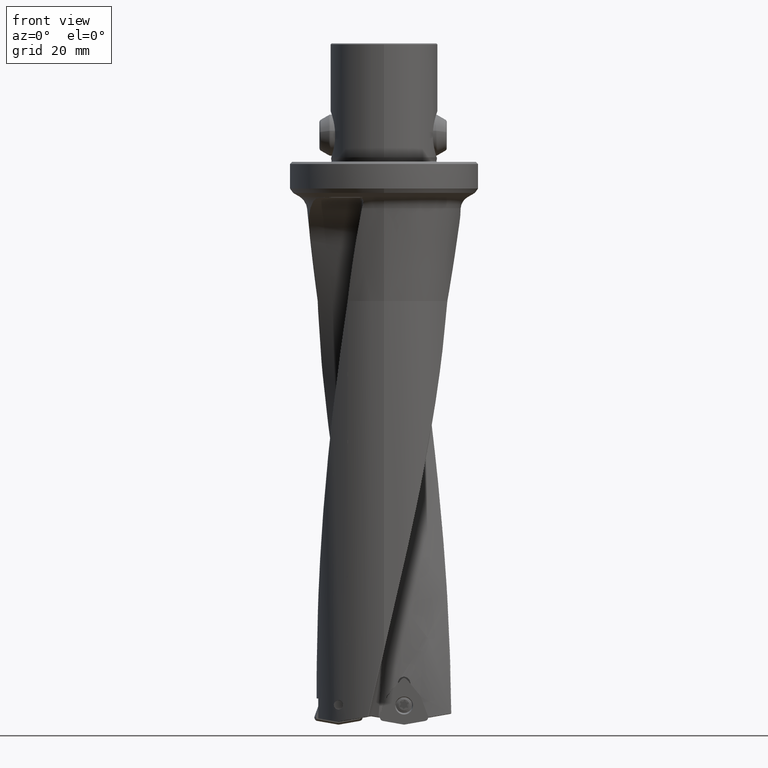
[diagram: clean part render]
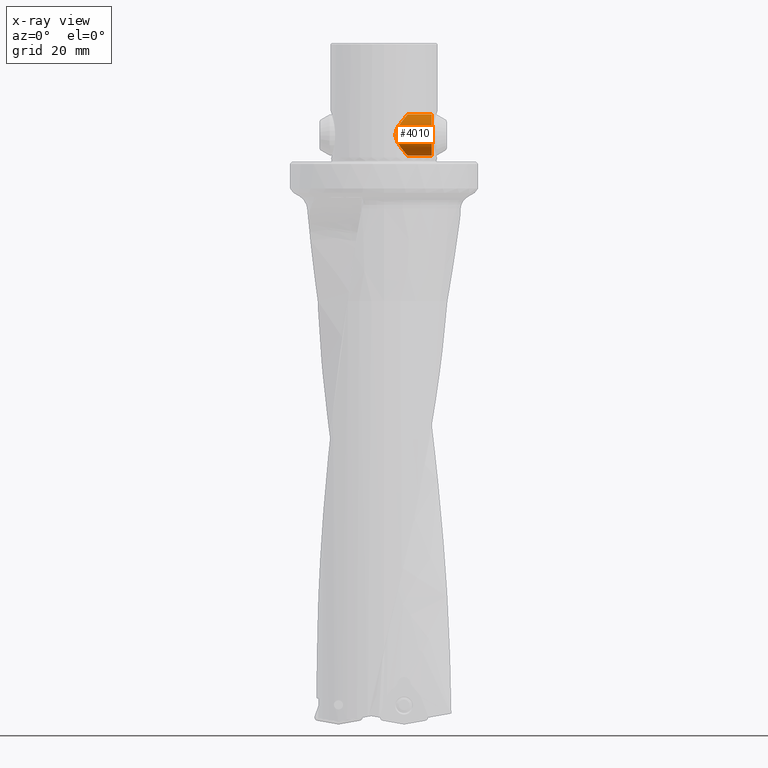
[diagram: x-ray — body ghosted, one internal face saturated and labeled with its STEP entity id]
A machine part, front view, then the same camera in x-ray: the body is ghosted and one INTERNAL B-rep face — a face not visible from any outside direction — is saturated and labeled: STEP entity #4010.
In plain terms, the highlighted cylindrical surface (edge-blend (fillet) strip) has radius 7 mm, axis along (-1, 0, -0).
Its self-contained STEP definition (entity closure, byte-faithful):
#2290=EDGE_CURVE('NONE',#3262,#4446,#6003,.T.);
#2452=EDGE_CURVE('NONE',#3468,#4674,#6177,.T.);
#2458=EDGE_CURVE('NONE',#4446,#4674,#6183,.F.);
#3262=VERTEX_POINT('NONE',#7089);
#3468=VERTEX_POINT('NONE',#7321);
#4010=ADVANCED_FACE('NONE',(#7917),#7918,.F.);
#4446=VERTEX_POINT('NONE',#8397);
#4562=EDGE_CURVE('NONE',#3468,#3262,#8527,.T.);
#4674=VERTEX_POINT('NONE',#8655);
#6003=LINE('',#12267,#12268);
#6177=LINE('',#12723,#12724);
#6183=B_SPLINE_CURVE_WITH_KNOTS('',3,(#12731,#12732,#12733,#12734,#12735,#12736,#12737,#12738,#12739,#12740,#12741,#12742,#12743,#12744,#12745,#12746,#12747,#12748,#12749,#12750,#12751,#12752,#12753,#12754,#12755,#12756,#12757,#12758,#12759,#12760,#12761,#12762,#12763,#12764,#12765,#12766,#12767,#12768,#12769),.UNSPECIFIED.,.F.,.F.,(4,2,2,2,2,2,2,2,2,3,2,2,2,2,2,2,2,2,4),(-13.0261231570802,-11.6170748413418,-10.2080265256034,-8.79897820986499,-7.3899298941266,-5.9808815783882,-4.48566118379115,-2.9904407891941,-1.49522039459705,0.0,1.49522039459705,2.9904407891941,4.48566118379115,5.98088157838819,7.38992989412659,8.79897820986499,10.2080265256034,11.6170748413418,13.0261231570802),.UNSPECIFIED.);
#7089=CARTESIAN_POINT('',(16.1293556529821,-3.8408194869494E-014,16.0));
#7321=CARTESIAN_POINT('',(16.1293556529821,-2.28482866419656E-014,2.00000000000004));
#7917=FACE_OUTER_BOUND('',#33043,.T.);
#7918=CYLINDRICAL_SURFACE('',#33044,7.0);
#8397=CARTESIAN_POINT('',(8.0,-1.73749903353837E-014,16.0));
#8527=CIRCLE('',#37540,7.0);
#8655=CARTESIAN_POINT('',(8.0,-1.99285032920216E-014,2.00000000000004));
#12267=CARTESIAN_POINT('',(-30.2723165328771,7.2086266653236E-014,16.0));
#12268=VECTOR('',#46589,1000.0);
#12723=CARTESIAN_POINT('',(-30.2723165328771,7.29434911009116E-014,2.00000000000004));
#12724=VECTOR('',#46764,1000.0);
#12731=CARTESIAN_POINT('',(7.8742940532998,1.41261925590989,2.1440167125472));
#12732=CARTESIAN_POINT('',(7.95788060027424,0.946686878016384,2.04801515855551));
#12733=CARTESIAN_POINT('',(8.0,0.469682771912781,2.00000000000004));
#12734=CARTESIAN_POINT('',(8.0,-0.469682771912817,2.00000000000004));
#12735=CARTESIAN_POINT('',(7.95788060027424,-0.946686878016421,2.04801515855551));
#12736=CARTESIAN_POINT('',(7.79070750632535,-1.87855163380344,2.2400182665389));
#12737=CARTESIAN_POINT('',(7.66573577056591,-2.33344473878203,2.38392003769998));
#12738=CARTESIAN_POINT('',(7.35047035995109,-3.19046270485161,2.75192641244782));
#12739=CARTESIAN_POINT('',(7.15992269108926,-3.59363227200831,2.97636181017352));
#12740=CARTESIAN_POINT('',(6.74134251891315,-4.32816206773421,3.48045082936047));
#12741=CARTESIAN_POINT('',(6.51341901027049,-4.6595905010221,3.76009556441045));
#12742=CARTESIAN_POINT('',(6.04241087484835,-5.25764934098913,4.35815440437749));
#12743=CARTESIAN_POINT('',(5.78027369773599,-5.54264922853153,4.70126538650684));
#12744=CARTESIAN_POINT('',(5.25299196402673,-6.04471668598793,5.44170265714782));
#12745=CARTESIAN_POINT('',(4.9877075599233,-6.26200045326762,5.83878271760427));
#12746=CARTESIAN_POINT('',(4.50503962216916,-6.61774142834713,6.67375438378003));
#12747=CARTESIAN_POINT('',(4.28769544564269,-6.75646986104508,7.11110425267603));
#12748=CARTESIAN_POINT('',(3.97082865492433,-6.94742665346326,8.02476929766324));
#12749=CARTESIAN_POINT('',(3.87298334620741,-7.00000000000001,8.50159320180101));
#12750=CARTESIAN_POINT('',(3.87298334620741,-7.0,9.00000000000003));
#12751=CARTESIAN_POINT('',(3.87298334620741,-7.0,9.49840679819905));
#12752=CARTESIAN_POINT('',(3.97082865492433,-6.94742665346326,9.97523070233683));
#12753=CARTESIAN_POINT('',(4.2876954456427,-6.75646986104508,10.888895747324));
#12754=CARTESIAN_POINT('',(4.50503962216916,-6.61774142834713,11.32624561622));
#12755=CARTESIAN_POINT('',(4.9877075599233,-6.26200045326762,12.1612172823958));
#12756=CARTESIAN_POINT('',(5.25299196402674,-6.04471668598793,12.5582973428522));
#12757=CARTESIAN_POINT('',(5.78027369773599,-5.54264922853154,13.2987346134932));
#12758=CARTESIAN_POINT('',(6.04241087484835,-5.25764934098913,13.6418455956226));
#12759=CARTESIAN_POINT('',(6.51341901027049,-4.6595905010221,14.2399044355896));
#12760=CARTESIAN_POINT('',(6.74134251891315,-4.32816206773422,14.5195491706396));
#12761=CARTESIAN_POINT('',(7.15992269108926,-3.59363227200831,15.0236381898265));
#12762=CARTESIAN_POINT('',(7.35047035995109,-3.1904627048516,15.2480735875523));
#12763=CARTESIAN_POINT('',(7.66573577056591,-2.33344473878202,15.6160799623001));
#12764=CARTESIAN_POINT('',(7.79070750632535,-1.87855163380344,15.7599817334612));
#12765=CARTESIAN_POINT('',(7.95788060027424,-0.946686878016423,15.9519848414446));
#12766=CARTESIAN_POINT('',(8.0,-0.469682771912818,16.0));
#12767=CARTESIAN_POINT('',(8.0,0.46968277191278,16.0));
#12768=CARTESIAN_POINT('',(7.95788060027424,0.946686878016385,15.9519848414446));
#12769=CARTESIAN_POINT('',(7.8742940532998,1.41261925590989,15.8559832874529));
#33043=EDGE_LOOP('',(#48849,#48850,#48851,#48852));
#33044=AXIS2_PLACEMENT_3D('',#48853,#48854,#48855);
#37540=AXIS2_PLACEMENT_3D('',#49522,#49523,#49524);
#46589=DIRECTION('',(-1.0,2.38126033648423E-015,0.0));
#46764=DIRECTION('',(-1.0,2.38126033648423E-015,0.0));
#48849=ORIENTED_EDGE('',*,*,#4562,.F.);
#48850=ORIENTED_EDGE('',*,*,#2452,.T.);
#48851=ORIENTED_EDGE('',*,*,#2458,.F.);
#48852=ORIENTED_EDGE('',*,*,#2290,.F.);
#48853=CARTESIAN_POINT('',(-30.2723165328771,7.2086266653236E-014,9.00000000000003));
#48854=DIRECTION('',(-1.0,2.38126033648423E-015,-0.0));
#48855=DIRECTION('',(0.0,0.0,1.0));
#49522=CARTESIAN_POINT('',(16.1293556529821,-3.8408194869494E-014,9.00000000000003));
#49523=DIRECTION('',(-1.0,2.38126033648423E-015,0.0));
#49524=DIRECTION('',(0.0,0.0,1.0));